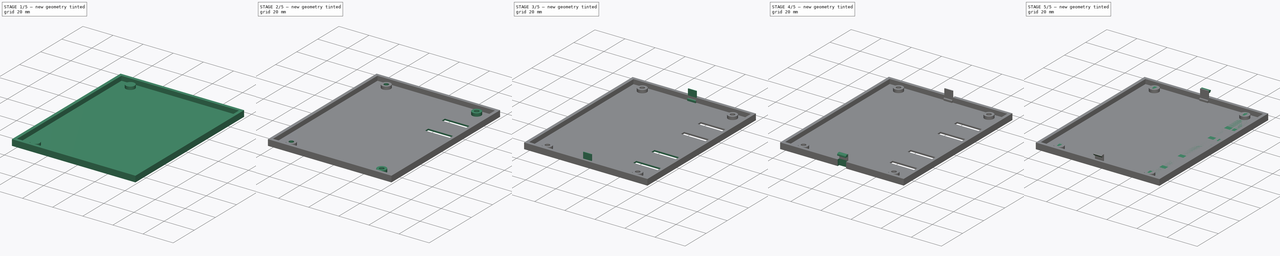
[diagram: build sequence overview — one tinted view per stage of 5, left to right]
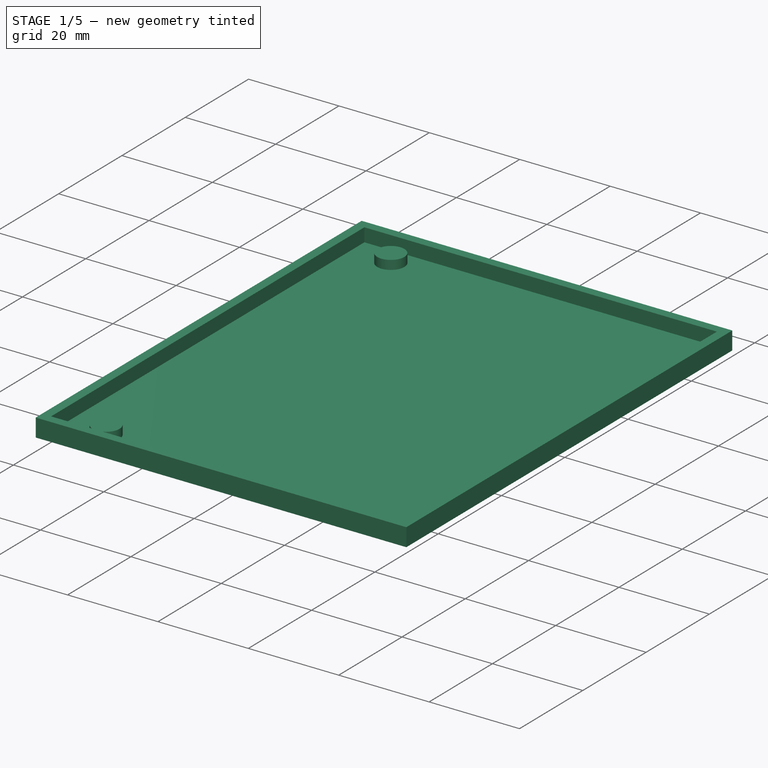
[diagram: stage 1 of 5 — iso view after this stage's code; geometry added in this stage tinted green]
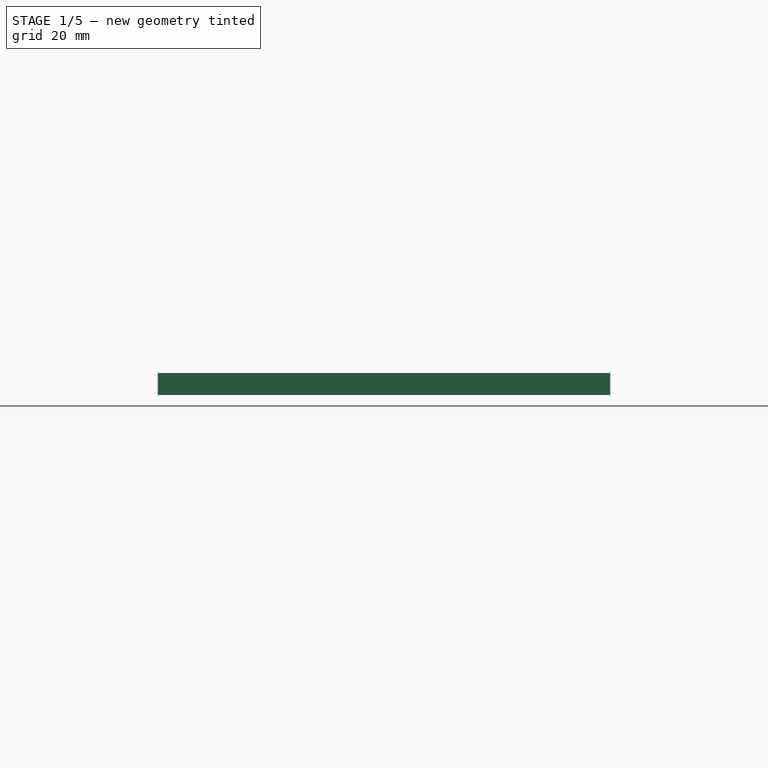
[diagram: stage 1 of 5 — front view after this stage's code; geometry added in this stage tinted green]
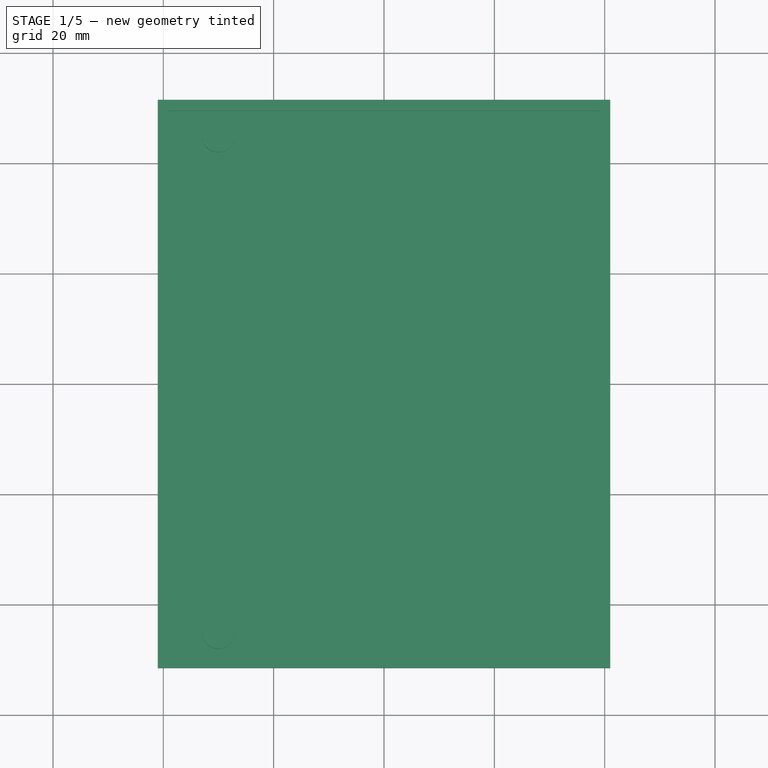
[diagram: stage 1 of 5 — top view after this stage's code; geometry added in this stage tinted green]
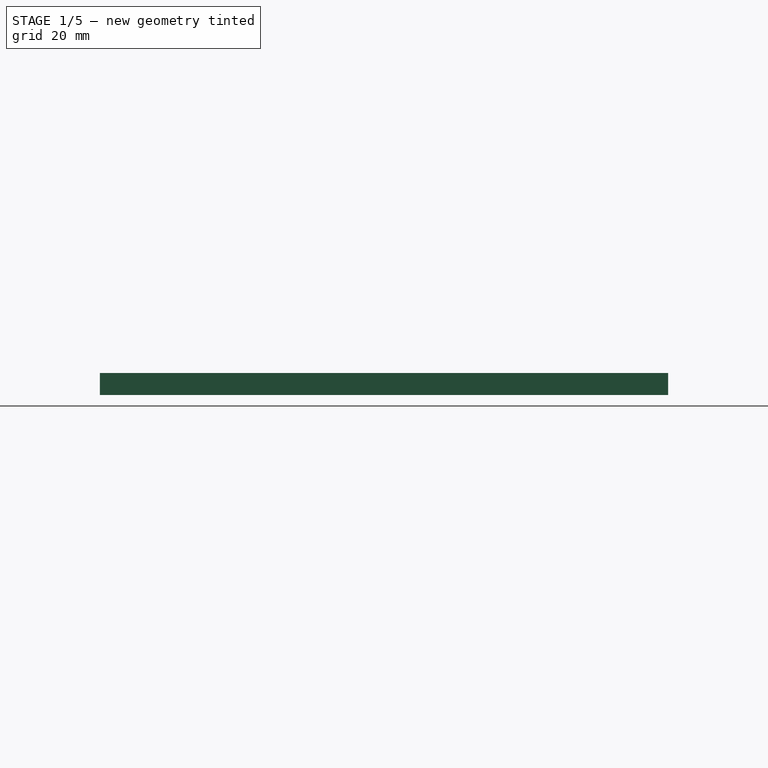
[diagram: stage 1 of 5 — right view after this stage's code; geometry added in this stage tinted green]
FCSTD DOCUMENT  (FreeCAD 1.0R39319 (Git))
Label: Tapa PLC
License: All rights reserved
LicenseURL: https://en.wikipedia.org/wiki/All_rights_reserved
objects: Sketcher::SketchObject×11, PartDesign::Pad×5, PartDesign::Pocket×5, PartDesign::Mirrored×3, PartDesign::Fillet×2, PartDesign::Chamfer×1, PartDesign::Body×1
note: 68 computed .brp shape members not serialized (recipe doc carries the construction recipe); baked Part::Feature solids carry a one-line shape summary decoded from their .brp

FEATURE [Sketcher::SketchObject] Sketch
  ArcFitTolerance = 1e-06
  AttachmentSupport = -> [XY_Plane]
  FullyConstrained = false
  MakeInternals = false
  MapMode = 5
  sketch-geometry (4):
    g0: LineSegment StartX=41 StartY=-51.5 StartZ=0 EndX=41 EndY=51.5 EndZ=0
    g1: LineSegment StartX=41 StartY=51.5 StartZ=0 EndX=-41 EndY=51.5 EndZ=0
    g2: LineSegment StartX=-41 StartY=51.5 StartZ=0 EndX=-41 EndY=-51.5 EndZ=0
    g3: LineSegment StartX=-41 StartY=-51.5 StartZ=0 EndX=41 EndY=-51.5 EndZ=0
  constraints (10):
    c: Coincident(g0,g1)
    c: Coincident(g1,g2)
    c: Coincident(g2,g3)
    c: Coincident(g3,g0)
    c: Vertical(g0)
    c: Vertical(g2)
    c: Horizontal(g1)
    c: Horizontal(g3)
    c: DistanceY(g2,g2) = 103
    c: DistanceX(g1,g1) = 82
FEATURE [PartDesign::Pad] Pad
  Direction = (0,0,1)
  Length = 4
  Length2 = 10
  Profile = -> Sketch
  ReferenceAxis = -> Sketch [N_Axis]
  Refine = true
  Suppressed = false
  Type = 0
FEATURE [Sketcher::SketchObject] Sketch001
  ArcFitTolerance = 1e-06
  AttachmentSupport = -> [Pad]
  FullyConstrained = true
  MakeInternals = false
  MapMode = 5
  Placement = pos=(0,0,4) rot=(0,0,1;0rad)
  sketch-geometry (5):
    g0: LineSegment StartX=39 StartY=-49.5 StartZ=0 EndX=39 EndY=49.5 EndZ=0
    g1: LineSegment StartX=39 StartY=49.5 StartZ=0 EndX=-39 EndY=49.5 EndZ=0
    g2: LineSegment StartX=-39 StartY=49.5 StartZ=0 EndX=-39 EndY=-49.5 EndZ=0
    g3: LineSegment StartX=-39 StartY=-49.5 StartZ=0 EndX=39 EndY=-49.5 EndZ=0
    g4: GeomPoint [constr] X=0 Y=0 Z=0
  constraints (12):
    c: Coincident(g0,g1)
    c: Coincident(g1,g2)
    c: Coincident(g2,g3)
    c: Coincident(g3,g0)
    c: Vertical(g0)
    c: Vertical(g2)
    c: Horizontal(g1)
    c: Horizontal(g3)
    c: Symmetric(g2,g0,g4)
    c: Coincident(g4,g-1)
    c: DistanceY(g2,g2) = 99
    c: DistanceX(g1,g1) = 78
FEATURE [PartDesign::Pocket] Pocket
  BaseFeature = -> Pad
  Direction = (0,0,-1)
  Length = 3
  Length2 = 5
  Profile = -> Sketch001
  ReferenceAxis = -> Sketch001 [N_Axis]
  Refine = true
  Suppressed = false
  Type = 0
FEATURE [Sketcher::SketchObject] Sketch002
  ArcFitTolerance = 1e-06
  AttachmentSupport = -> [Pocket]
  FullyConstrained = true
  MakeInternals = false
  MapMode = 5
  Placement = pos=(0,0,1) rot=(0,0,1;0rad)
  sketch-geometry (2):
    g0: Circle CenterX=-30 CenterY=45 CenterZ=0 NormalX=0 NormalY=0 NormalZ=1 AngleXU=0 Radius=3
    g1: Circle CenterX=-30 CenterY=-45 CenterZ=0 NormalX=0 NormalY=0 NormalZ=1 AngleXU=0 Radius=3
  constraints (6):
    c: DistanceY(g-1,g0) = 45
    c: DistanceX(g0,g-1) = 30
    c: DistanceX(g1,g-1) = 30
    c: DistanceY(g1,g-1) = 45
    c: Diameter(g1) = 6
    c: Diameter(g0) = 6
FEATURE [PartDesign::Pad] Pad001
  BaseFeature = -> Pocket
  Direction = (0,0,1)
  Length = 2
  Length2 = 10
  Profile = -> Sketch002
  ReferenceAxis = -> Sketch002 [N_Axis]
  Refine = true
  Suppressed = false
  Type = 0
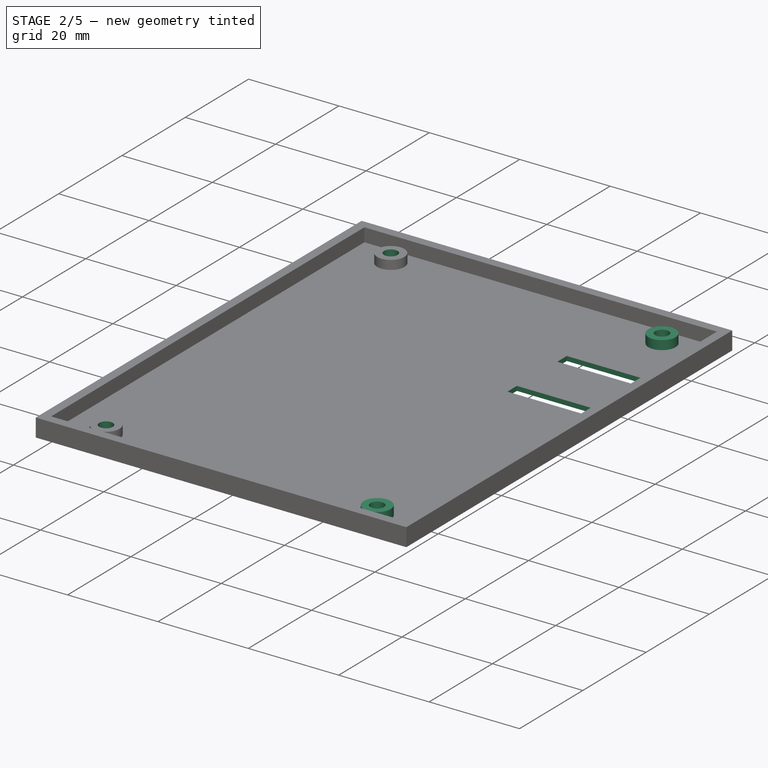
[diagram: stage 2 of 5 — iso view after this stage's code; geometry added in this stage tinted green]
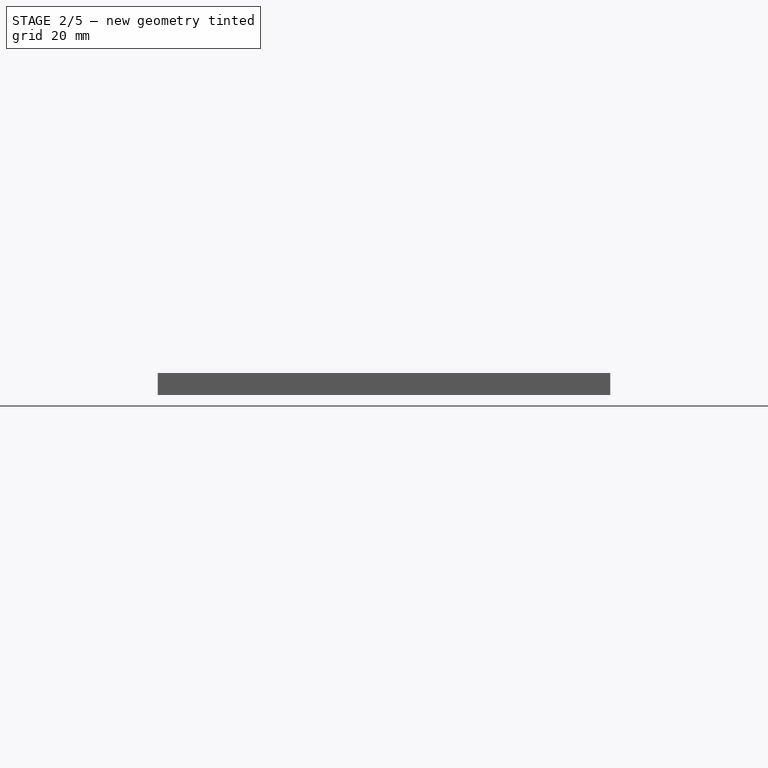
[diagram: stage 2 of 5 — front view after this stage's code; geometry added in this stage tinted green]
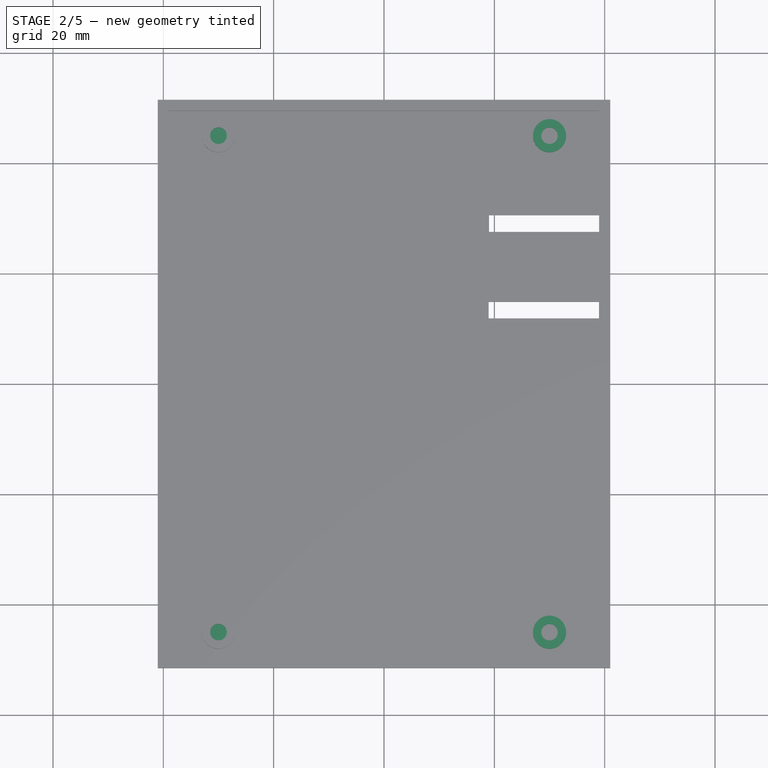
[diagram: stage 2 of 5 — top view after this stage's code; geometry added in this stage tinted green]
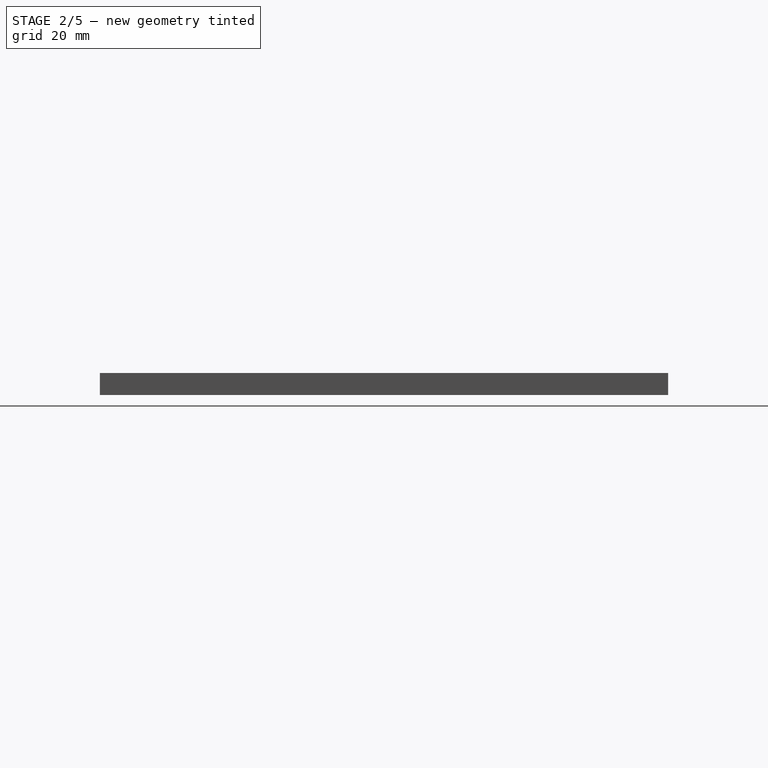
[diagram: stage 2 of 5 — right view after this stage's code; geometry added in this stage tinted green]
FEATURE [Sketcher::SketchObject] Sketch003
  ArcFitTolerance = 1e-06
  AttachmentSupport = -> [Mirrored]
  FullyConstrained = true
  MakeInternals = false
  MapMode = 5
  Placement = pos=(0,0,3) rot=(0,0,1;0rad)
  sketch-geometry (4):
    g0: Circle CenterX=-30 CenterY=45 CenterZ=0 NormalX=0 NormalY=0 NormalZ=1 AngleXU=0 Radius=1.5
    g1: Circle CenterX=-30 CenterY=-45 CenterZ=0 NormalX=0 NormalY=0 NormalZ=1 AngleXU=0 Radius=1.5
    g2: Circle CenterX=30 CenterY=-45 CenterZ=0 NormalX=0 NormalY=0 NormalZ=1 AngleXU=0 Radius=1.5
    g3: Circle CenterX=30 CenterY=45 CenterZ=0 NormalX=0 NormalY=0 NormalZ=1 AngleXU=0 Radius=1.5
  constraints (12):
    c: DistanceX(g0,g-1) = 30
    c: DistanceY(g-1,g0) = 45
    c: DistanceX(g-1,g3) = 30
    c: DistanceY(g-1,g3) = 45
    c: DistanceX(g1,g-1) = 30
    c: DistanceY(g1,g-1) = 45
    c: DistanceX(g-1,g2) = 30
    c: DistanceY(g2,g-1) = 45
    c: Diameter(g2) = 3
    c: Diameter(g1) = 3
    c: Diameter(g0) = 3
    c: Diameter(g3) = 3
FEATURE [PartDesign::Pocket] Pocket001
  BaseFeature = -> Pad001
  Direction = (0,0,-1)
  Length = 2
  Length2 = 5
  Profile = -> Sketch003
  ReferenceAxis = -> Sketch003 [N_Axis]
  Refine = true
  Suppressed = false
  Type = 0
FEATURE [PartDesign::Mirrored] Mirrored001
  BaseFeature = -> Pocket001
  MirrorPlane = -> YZ_Plane
  Refine = true
  Suppressed = false
  TransformMode = 1
FEATURE [Sketcher::SketchObject] Sketch004
  ArcFitTolerance = 1e-06
  AttachmentSupport = -> [Mirrored001]
  FullyConstrained = false
  MakeInternals = false
  MapMode = 5
  Placement = pos=(0,0,1) rot=(0,0,1;0rad)
  sketch-geometry (8):
    g0: LineSegment StartX=39.0318 StartY=30.5954 StartZ=0 EndX=19.0318 EndY=30.5954 EndZ=0
    g1: LineSegment StartX=19.0318 StartY=30.5954 StartZ=0 EndX=19.0318 EndY=27.5954 EndZ=0
    g2: LineSegment StartX=19.0318 StartY=27.5954 StartZ=0 EndX=39.0318 EndY=27.5954 EndZ=0
    g3: LineSegment StartX=39.0318 StartY=27.5954 StartZ=0 EndX=39.0318 EndY=30.5954 EndZ=0
    g4: LineSegment StartX=38.9677 StartY=11.9056 StartZ=0 EndX=38.9677 EndY=14.9056 EndZ=0
    g5: LineSegment StartX=38.9677 StartY=14.9056 StartZ=0 EndX=18.9677 EndY=14.9056 EndZ=0
    g6: LineSegment StartX=18.9677 StartY=14.9056 StartZ=0 EndX=18.9677 EndY=11.9056 EndZ=0
    g7: LineSegment StartX=18.9677 StartY=11.9056 StartZ=0 EndX=38.9677 EndY=11.9056 EndZ=0
  constraints (20):
    c: Coincident(g0,g1)
    c: Coincident(g1,g2)
    c: Coincident(g2,g3)
    c: Coincident(g3,g0)
    c: Horizontal(g0)
    c: Horizontal(g2)
    c: Vertical(g1)
    c: Vertical(g3)
    c: Coincident(g4,g5)
    c: Coincident(g5,g6)
    c: Coincident(g6,g7)
    c: Coincident(g7,g4)
    c: Vertical(g4)
    c: Vertical(g6)
    c: Horizontal(g5)
    c: Horizontal(g7)
    c: DistanceY(g6,g6) = 3
    c: DistanceX(g5,g5) = 20
    c: DistanceX(g0,g0) = 20
    c: DistanceY(g1,g1) = 3
FEATURE [PartDesign::Pocket] Pocket002
  BaseFeature = -> Mirrored001
  Direction = (0,0,-1)
  Length = 5
  Length2 = 5
  Midplane = true
  Profile = -> Sketch004
  ReferenceAxis = -> Sketch004 [N_Axis]
  Refine = true
  Suppressed = false
  Type = 0
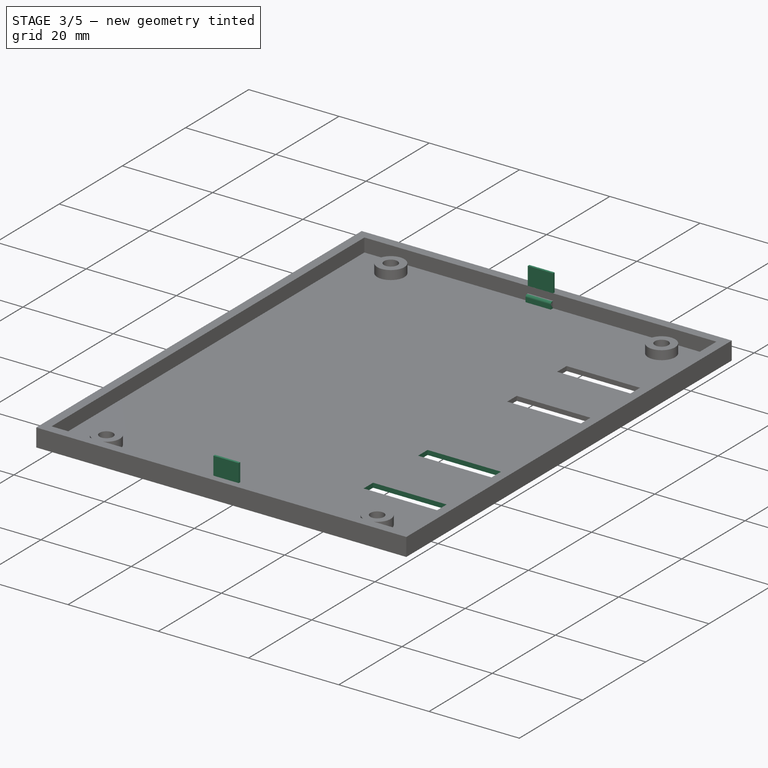
[diagram: stage 3 of 5 — iso view after this stage's code; geometry added in this stage tinted green]
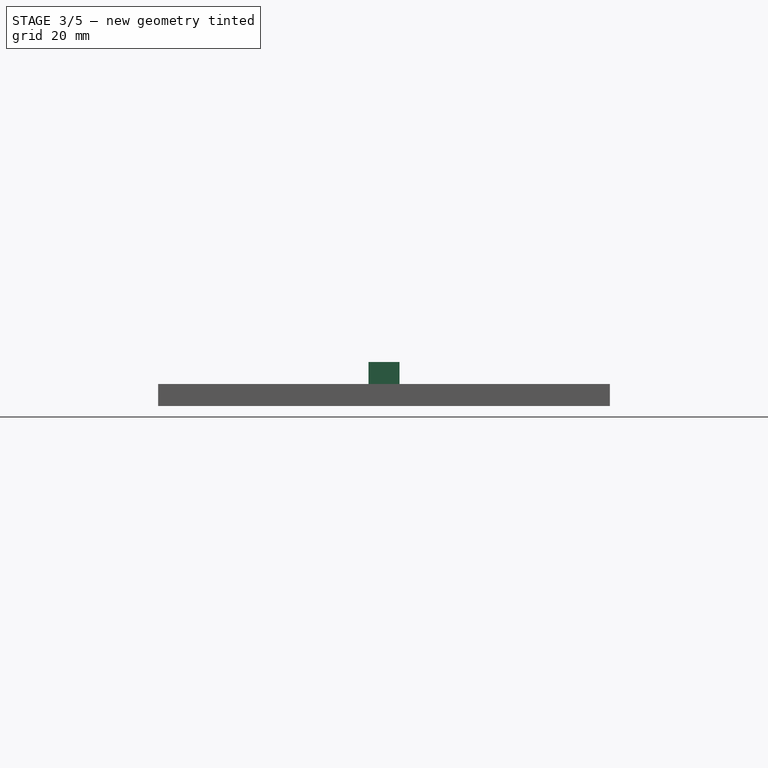
[diagram: stage 3 of 5 — front view after this stage's code; geometry added in this stage tinted green]
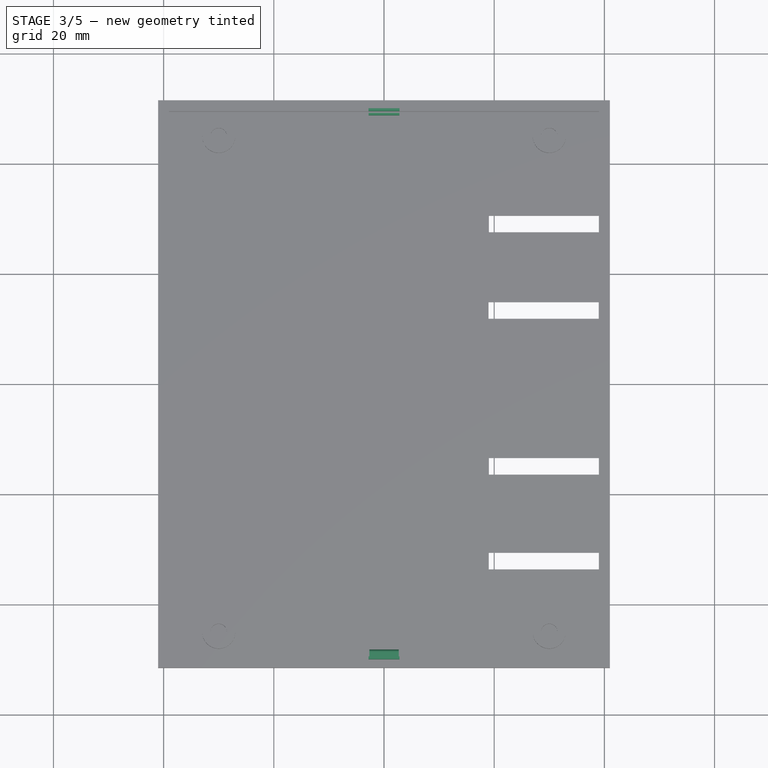
[diagram: stage 3 of 5 — top view after this stage's code; geometry added in this stage tinted green]
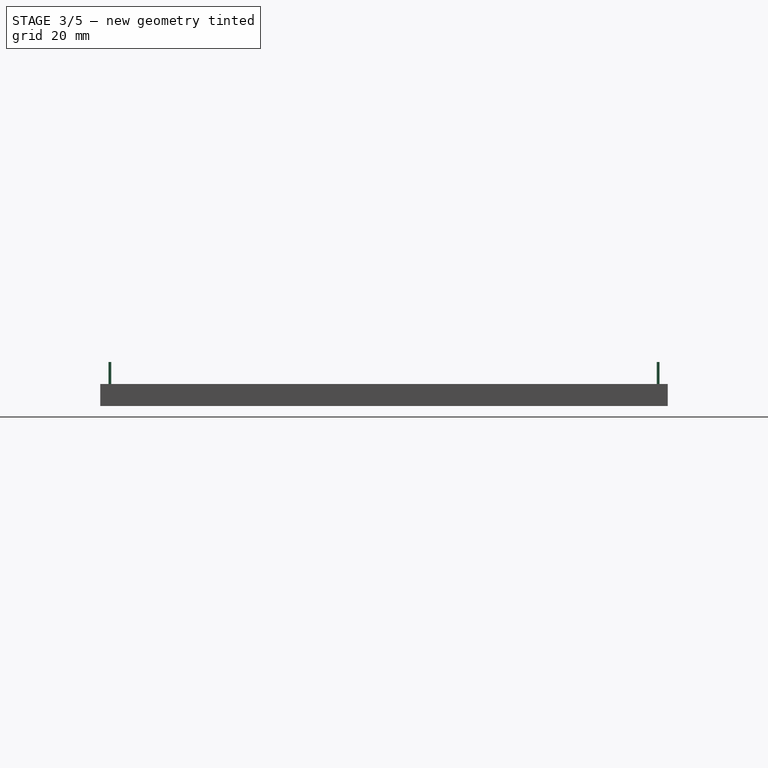
[diagram: stage 3 of 5 — right view after this stage's code; geometry added in this stage tinted green]
FEATURE [Sketcher::SketchObject] Sketch005
  ArcFitTolerance = 1e-06
  AttachmentSupport = -> [Pocket002]
  FullyConstrained = false
  MakeInternals = false
  MapMode = 5
  Placement = pos=(0,0,1) rot=(0,0,1;0rad)
  sketch-geometry (8):
    g0: LineSegment StartX=39.0281 StartY=-13.3958 StartZ=0 EndX=19.0281 EndY=-13.3958 EndZ=0
    g1: LineSegment StartX=19.0281 StartY=-13.3958 StartZ=0 EndX=19.0281 EndY=-16.3958 EndZ=0
    g2: LineSegment StartX=19.0281 StartY=-16.3958 StartZ=0 EndX=39.0281 EndY=-16.3958 EndZ=0
    g3: LineSegment StartX=39.0281 StartY=-16.3958 StartZ=0 EndX=39.0281 EndY=-13.3958 EndZ=0
    g4: LineSegment StartX=39.0021 StartY=-33.5946 StartZ=0 EndX=39.0021 EndY=-30.5946 EndZ=0
    g5: LineSegment StartX=39.0021 StartY=-30.5946 StartZ=0 EndX=19.0021 EndY=-30.5946 EndZ=0
    g6: LineSegment StartX=19.0021 StartY=-30.5946 StartZ=0 EndX=19.0021 EndY=-33.5946 EndZ=0
    g7: LineSegment StartX=19.0021 StartY=-33.5946 StartZ=0 EndX=39.0021 EndY=-33.5946 EndZ=0
  constraints (20):
    c: Coincident(g0,g1)
    c: Coincident(g1,g2)
    c: Coincident(g2,g3)
    c: Coincident(g3,g0)
    c: Horizontal(g0)
    c: Horizontal(g2)
    c: Vertical(g1)
    c: Vertical(g3)
    c: Coincident(g4,g5)
    c: Coincident(g5,g6)
    c: Coincident(g6,g7)
    c: Coincident(g7,g4)
    c: Vertical(g4)
    c: Vertical(g6)
    c: Horizontal(g5)
    c: Horizontal(g7)
    c: DistanceY(g1,g1) = 3
    c: DistanceY(g6,g6) = 3
    c: DistanceX(g0,g0) = 20
    c: DistanceX(g5,g5) = 20
FEATURE [PartDesign::Pocket] Pocket003
  BaseFeature = -> Pocket002
  Direction = (0,0,-1)
  Length = 5
  Length2 = 5
  Profile = -> Sketch005
  ReferenceAxis = -> Sketch005 [N_Axis]
  Refine = true
  Suppressed = false
  Type = 0
FEATURE [Sketcher::SketchObject] Sketch006
  ArcFitTolerance = 1e-06
  AttachmentSupport = -> [Pocket003]
  FullyConstrained = false
  MakeInternals = false
  MapMode = 5
  Placement = pos=(0,0,4) rot=(0,0,1;0rad)
  sketch-geometry (10):
    g0: LineSegment StartX=-2.80232 StartY=-49.5083 StartZ=0 EndX=-2.80232 EndY=-49.9956 EndZ=0
    g1: LineSegment StartX=-2.80232 StartY=-49.9956 StartZ=0 EndX=2.80232 EndY=-49.9956 EndZ=0
    g2: LineSegment StartX=2.80232 StartY=-49.9956 StartZ=0 EndX=2.80232 EndY=-49.5083 EndZ=0
    g3: LineSegment StartX=2.80232 StartY=-49.5083 StartZ=0 EndX=-2.80232 EndY=-49.5083 EndZ=0
    g4: LineSegment [constr] StartX=0 StartY=-47.1264 StartZ=0 EndX=0 EndY=-51.6196 EndZ=0
    g5: LineSegment StartX=-2.80232 StartY=49.5083 StartZ=0 EndX=-2.80232 EndY=49.9956 EndZ=0
    g6: LineSegment StartX=-2.80232 StartY=49.9956 StartZ=0 EndX=2.80232 EndY=49.9956 EndZ=0
    g7: LineSegment StartX=2.80232 StartY=49.9956 StartZ=0 EndX=2.80232 EndY=49.5083 EndZ=0
    g8: LineSegment StartX=2.80232 StartY=49.5083 StartZ=0 EndX=-2.80232 EndY=49.5083 EndZ=0
    g9: LineSegment [constr] StartX=0 StartY=47.1264 StartZ=0 EndX=0 EndY=51.6196 EndZ=0
  constraints (11):
    c: Coincident(g1,g2)
    c: Coincident(g2,g3)
    c: Coincident(g3,g0)
    c: Vertical(g0)
    c: Vertical(g2)
    c: Horizontal(g1)
    c: Horizontal(g3)
    c: PointOnObject(g4,g-2)
    c: PointOnObject(g4,g-2)
    c: Symmetric(g0,g1,g4)
    c: Symmetric(g5,g6,g9)
FEATURE [PartDesign::Pad] Pad002
  BaseFeature = -> Pocket003
  Direction = (0,0,1)
  Length = 4
  Length2 = 10
  Profile = -> Sketch006
  ReferenceAxis = -> Sketch006 [N_Axis]
  Refine = true
  Suppressed = false
  Type = 0
FEATURE [Sketcher::SketchObject] Sketch007
  ArcFitTolerance = 1e-06
  AttachmentSupport = -> [Pad002]
  FullyConstrained = true
  MakeInternals = false
  MapMode = 5
  Placement = pos=(0,0,4) rot=(0,0,1;0rad)
FEATURE [Sketcher::SketchObject] Sketch008
  ArcFitTolerance = 1e-06
  AttachmentSupport = -> [Pad002]
  FullyConstrained = false
  MakeInternals = false
  MapMode = 5
  Placement = pos=(0,0,1) rot=(0,0,1;0rad)
  sketch-geometry (8):
    g0: LineSegment StartX=-2.65937 StartY=-49.5019 StartZ=0 EndX=2.67348 EndY=-49.5019 EndZ=0
    g1: LineSegment StartX=2.67348 StartY=-49.5019 StartZ=0 EndX=2.67348 EndY=-48.162 EndZ=0
    g2: LineSegment StartX=2.67348 StartY=-48.162 StartZ=0 EndX=-2.65937 EndY=-48.162 EndZ=0
    g3: LineSegment StartX=-2.65937 StartY=-48.162 StartZ=0 EndX=-2.65937 EndY=-49.5019 EndZ=0
    g4: LineSegment StartX=-2.79735 StartY=49.5069 StartZ=0 EndX=2.78507 EndY=49.5069 EndZ=0
    g5: LineSegment StartX=2.78507 StartY=49.5069 StartZ=0 EndX=2.78507 EndY=48.7897 EndZ=0
    g6: LineSegment StartX=2.78507 StartY=48.7897 StartZ=0 EndX=-2.79735 EndY=48.7897 EndZ=0
    g7: LineSegment StartX=-2.79735 StartY=48.7897 StartZ=0 EndX=-2.79735 EndY=49.5069 EndZ=0
  constraints (16):
    c: Coincident(g2,g3)
    c: Coincident(g3,g0)
    c: Horizontal(g0)
    c: Horizontal(g2)
    c: Vertical(g1)
    c: Vertical(g3)
    c: Coincident(g6,g7)
    c: Coincident(g7,g4)
    c: Horizontal(g4)
    c: Horizontal(g6)
    c: Vertical(g5)
    c: Vertical(g7)
    c: Coincident(g2,g1)
    c: Coincident(g0,g1)
    c: Coincident(g4,g5)
    c: Coincident(g5,g6)
FEATURE [PartDesign::Pad] Pad003
  BaseFeature = -> Pad002
  Direction = (0,0,1)
  Length = 1.5
  Length2 = 10
  Profile = -> Sketch008
  ReferenceAxis = -> Sketch008 [N_Axis]
  Refine = true
  Suppressed = false
  Type = 0
FEATURE [PartDesign::Fillet] Fillet
  Base = -> Pad003 [Edge137,Edge132]
  BaseFeature = -> Pad003
  Radius = 0.5
  Refine = true
  SupportTransform = false
  Suppressed = false
  UseAllEdges = false
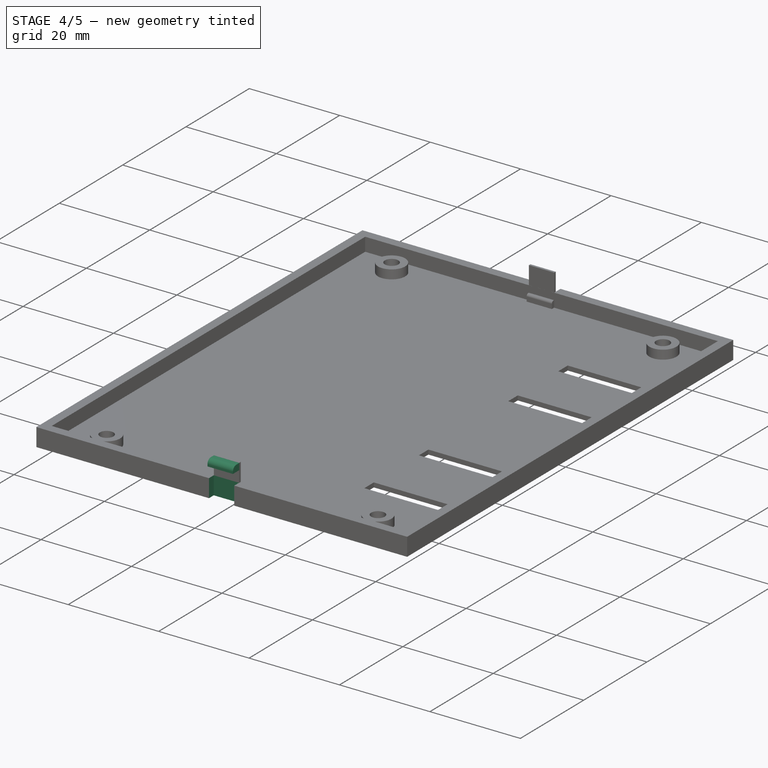
[diagram: stage 4 of 5 — iso view after this stage's code; geometry added in this stage tinted green]
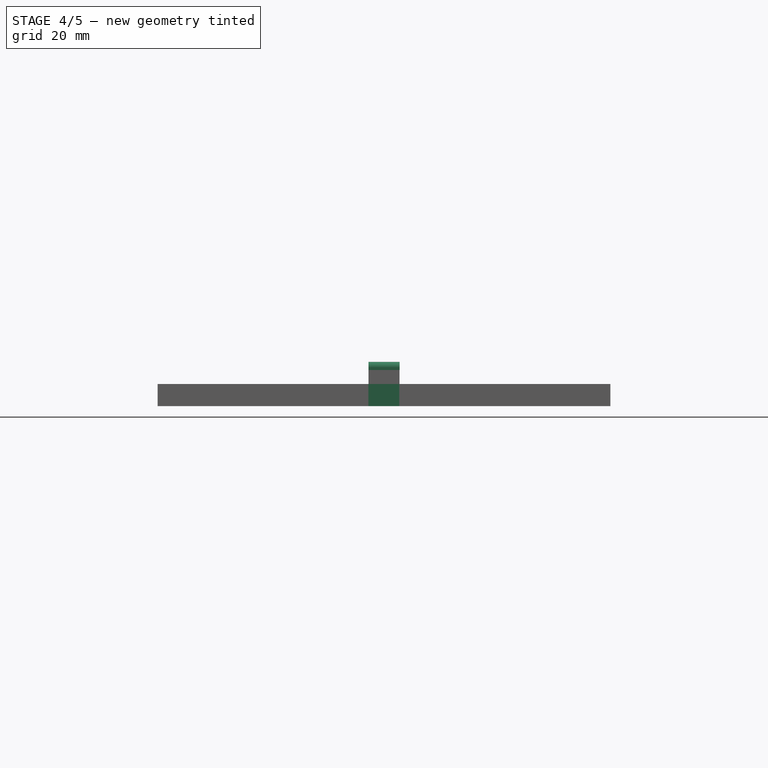
[diagram: stage 4 of 5 — front view after this stage's code; geometry added in this stage tinted green]
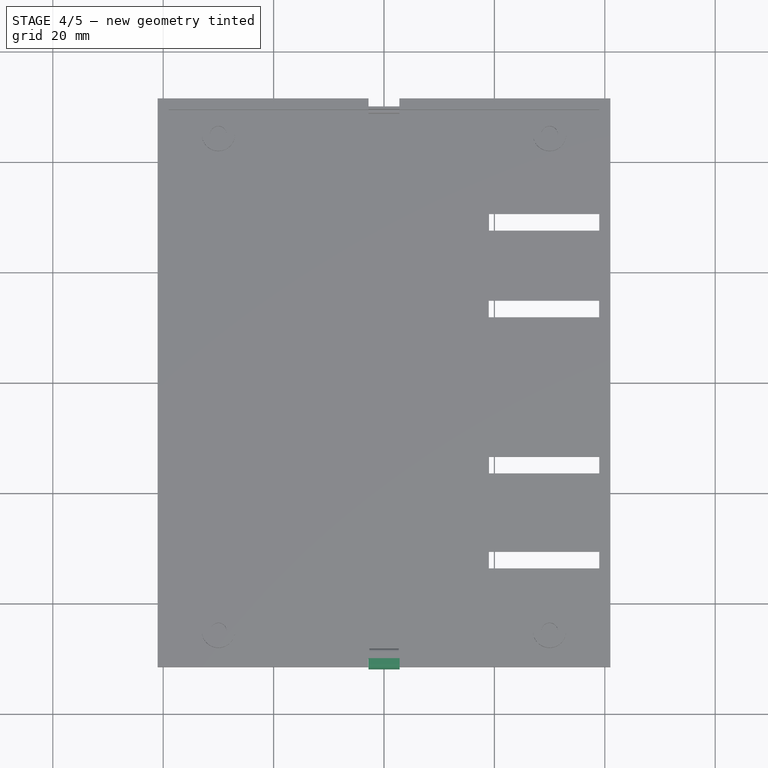
[diagram: stage 4 of 5 — top view after this stage's code; geometry added in this stage tinted green]
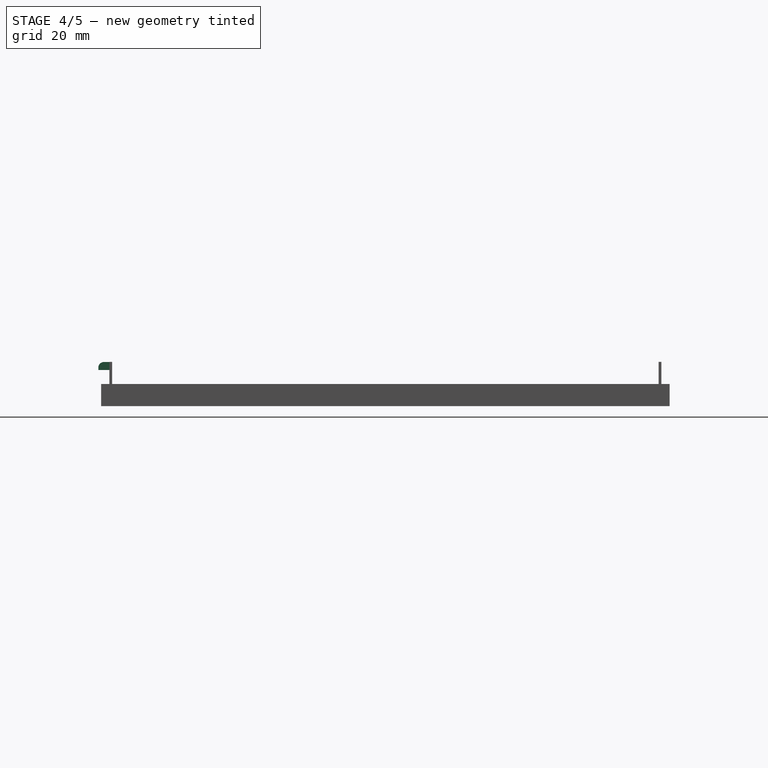
[diagram: stage 4 of 5 — right view after this stage's code; geometry added in this stage tinted green]
FEATURE [Sketcher::SketchObject] Sketch009
  ArcFitTolerance = 1e-06
  AttachmentSupport = -> [Fillet]
  FullyConstrained = false
  MakeInternals = false
  MapMode = 5
  Placement = pos=(0,0,4) rot=(0,0,1;0rad)
  sketch-geometry (8):
    g0: LineSegment StartX=-2.82173 StartY=-49.9953 StartZ=0 EndX=-2.82173 EndY=-51.6935 EndZ=0
    g1: LineSegment StartX=-2.82173 StartY=-51.6935 StartZ=0 EndX=2.77199 EndY=-51.6935 EndZ=0
    g2: LineSegment StartX=2.77199 StartY=-51.6935 StartZ=0 EndX=2.77199 EndY=-49.9953 EndZ=0
    g3: LineSegment StartX=2.77199 StartY=-49.9953 StartZ=0 EndX=-2.82173 EndY=-49.9953 EndZ=0
    g4: LineSegment StartX=-2.79966 StartY=49.9953 StartZ=0 EndX=-2.79966 EndY=51.6576 EndZ=0
    g5: LineSegment StartX=-2.79966 StartY=51.6576 StartZ=0 EndX=2.79406 EndY=51.6576 EndZ=0
    g6: LineSegment StartX=2.79406 StartY=51.6576 StartZ=0 EndX=2.79406 EndY=49.9953 EndZ=0
    g7: LineSegment StartX=2.79406 StartY=49.9953 StartZ=0 EndX=-2.79966 EndY=49.9953 EndZ=0
  constraints (16):
    c: Coincident(g0,g1)
    c: Coincident(g1,g2)
    c: Coincident(g2,g3)
    c: Coincident(g3,g0)
    c: Vertical(g0)
    c: Vertical(g2)
    c: Horizontal(g1)
    c: Horizontal(g3)
    c: Coincident(g4,g5)
    c: Coincident(g5,g6)
    c: Coincident(g6,g7)
    c: Coincident(g7,g4)
    c: Vertical(g4)
    c: Vertical(g6)
    c: Horizontal(g5)
    c: Horizontal(g7)
FEATURE [PartDesign::Pocket] Pocket004
  BaseFeature = -> Fillet
  Direction = (0,0,-1)
  Length = 5
  Length2 = 5
  Profile = -> Sketch009
  ReferenceAxis = -> Sketch009 [N_Axis]
  Refine = true
  Suppressed = false
  Type = 1
FEATURE [Sketcher::SketchObject] Sketch010
  ArcFitTolerance = 1e-06
  AttachmentSupport = -> [Pocket004]
  FullyConstrained = false
  MakeInternals = false
  MapMode = 5
  Placement = pos=(0,-49.9956,0) rot=(1,0,0;1.5708rad)
  sketch-geometry (4):
    g0: LineSegment StartX=-2.81378 StartY=7.98362 StartZ=0 EndX=-2.81378 EndY=6.53976 EndZ=0
    g1: LineSegment StartX=-2.81378 StartY=6.53976 StartZ=0 EndX=2.82224 EndY=6.53976 EndZ=0
    g2: LineSegment StartX=2.82224 StartY=6.53976 StartZ=0 EndX=2.82224 EndY=7.98362 EndZ=0
    g3: LineSegment StartX=2.82224 StartY=7.98362 StartZ=0 EndX=-2.81378 EndY=7.98362 EndZ=0
  constraints (8):
    c: Coincident(g0,g1)
    c: Coincident(g1,g2)
    c: Coincident(g2,g3)
    c: Coincident(g3,g0)
    c: Vertical(g0)
    c: Vertical(g2)
    c: Horizontal(g1)
    c: Horizontal(g3)
FEATURE [PartDesign::Pad] Pad004
  BaseFeature = -> Pocket004
  Direction = (0,-1,2e-16)
  Length = 2
  Length2 = 10
  Profile = -> Sketch010
  ReferenceAxis = -> Sketch010 [N_Axis]
  Refine = true
  Suppressed = false
  Type = 0
FEATURE [PartDesign::Fillet] Fillet001
  Base = -> Pad004 [Edge210]
  BaseFeature = -> Pad004
  Radius = 1
  Refine = true
  SupportTransform = false
  Suppressed = false
  UseAllEdges = false
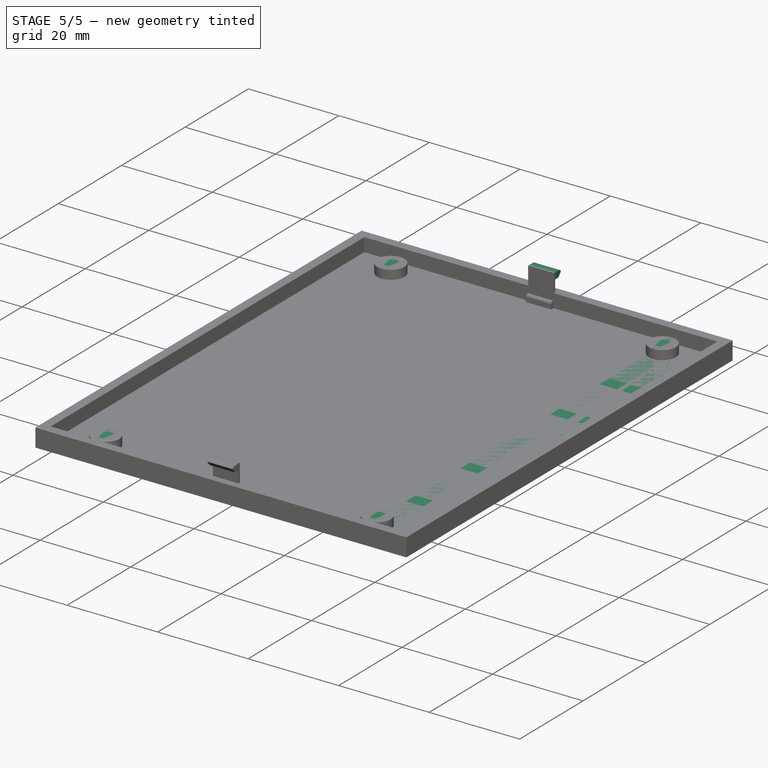
[diagram: stage 5 of 5 — iso view after this stage's code; geometry added in this stage tinted green]
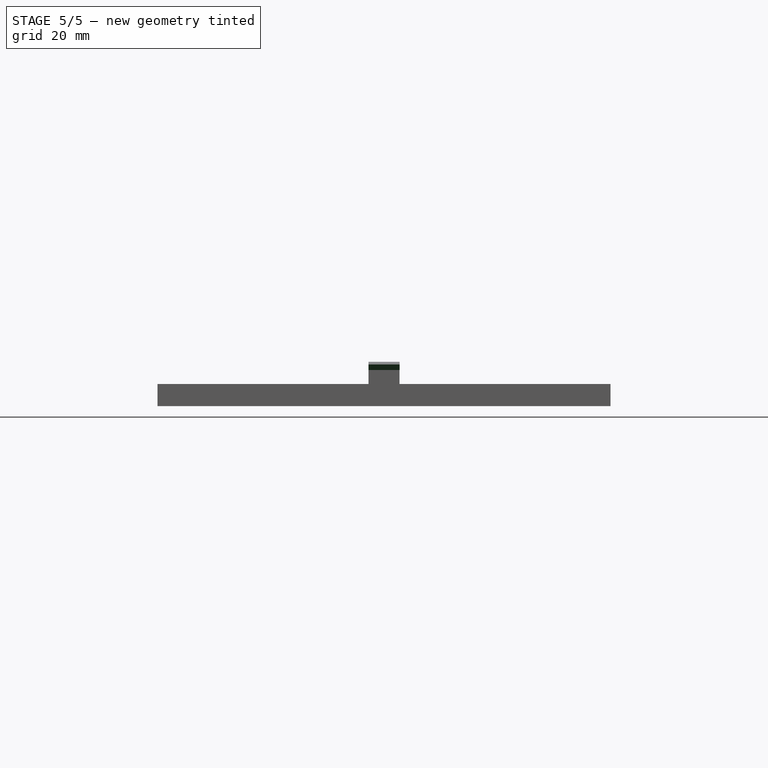
[diagram: stage 5 of 5 — front view after this stage's code; geometry added in this stage tinted green]
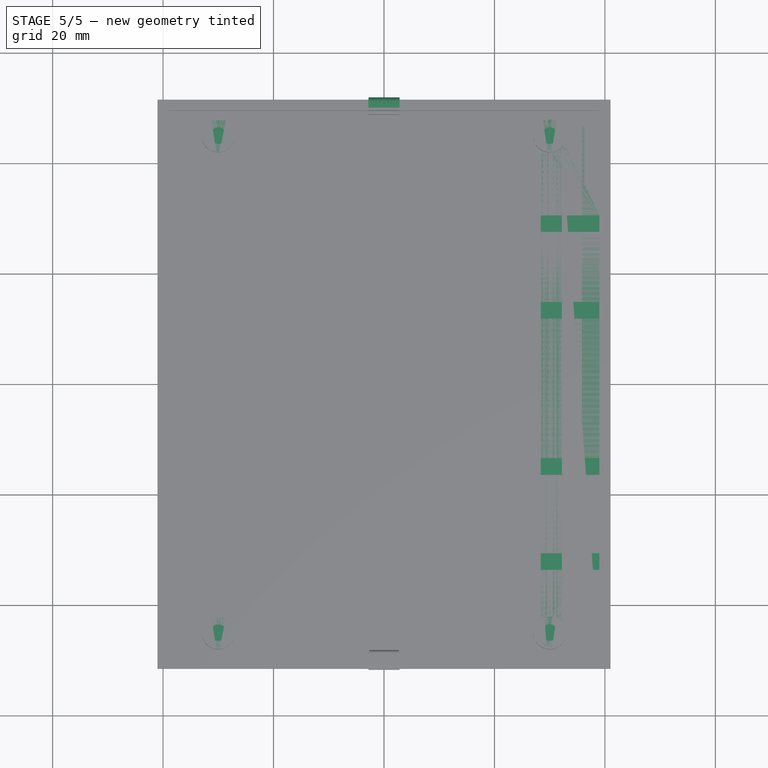
[diagram: stage 5 of 5 — top view after this stage's code; geometry added in this stage tinted green]
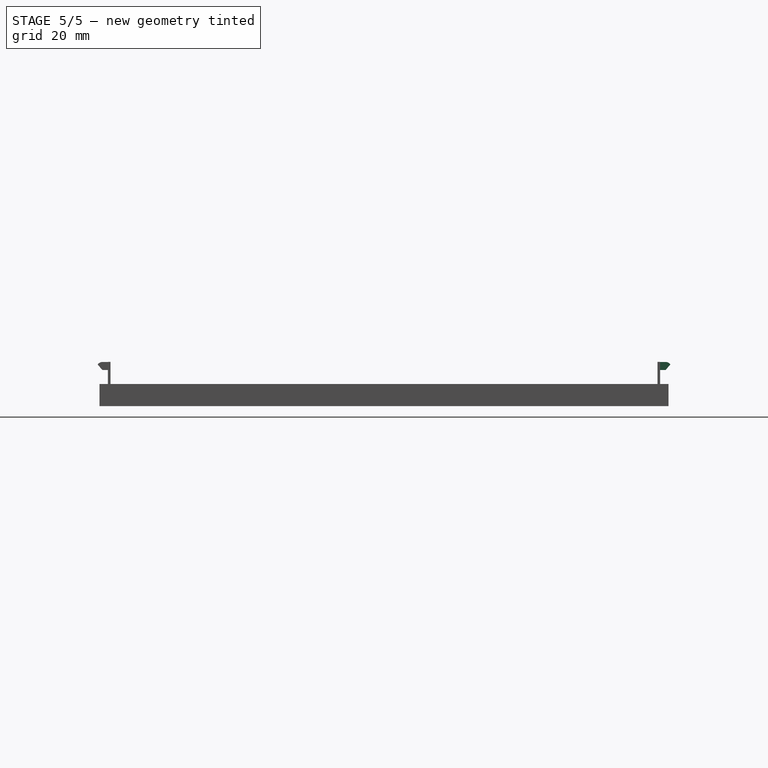
[diagram: stage 5 of 5 — right view after this stage's code; geometry added in this stage tinted green]
FEATURE [PartDesign::Mirrored] Mirrored
  BaseFeature = -> Pad001
  MirrorPlane = -> YZ_Plane
  Refine = true
  Suppressed = false
  TransformMode = 0
FEATURE [PartDesign::Chamfer] Chamfer
  Angle = 45
  Base = -> Fillet001 [Edge15]
  BaseFeature = -> Fillet001
  ChamferType = 0
  FlipDirection = false
  Refine = true
  Size = 1
  Size2 = 1
  SupportTransform = false
  Suppressed = false
  UseAllEdges = false
FEATURE [PartDesign::Mirrored] Mirrored002
  BaseFeature = -> Chamfer
  MirrorPlane = -> XZ_Plane
  Originals = -> [Pad004,Fillet001,Chamfer]
  Refine = true
  Suppressed = false
  TransformMode = 0
FEATURE [PartDesign::Body] Body  label="Cuerpo"
  AllowCompound = false
  Group = -> [Sketch,Pad,Sketch001,Pocket,Sketch002,Pad001,Mirrored,Sketch003,Pocket001,Mirrored001,Sketch004,Pocket002,Sketch005,Pocket003,Sketch006,Pad002,Sketch007,Sketch008,Pad003,Fillet,Sketch009,Pocket004,Sketch010,Pad004,Fillet001,Chamfer,Mirrored002]
  Origin = -> Origin
  Tip = -> Mirrored002
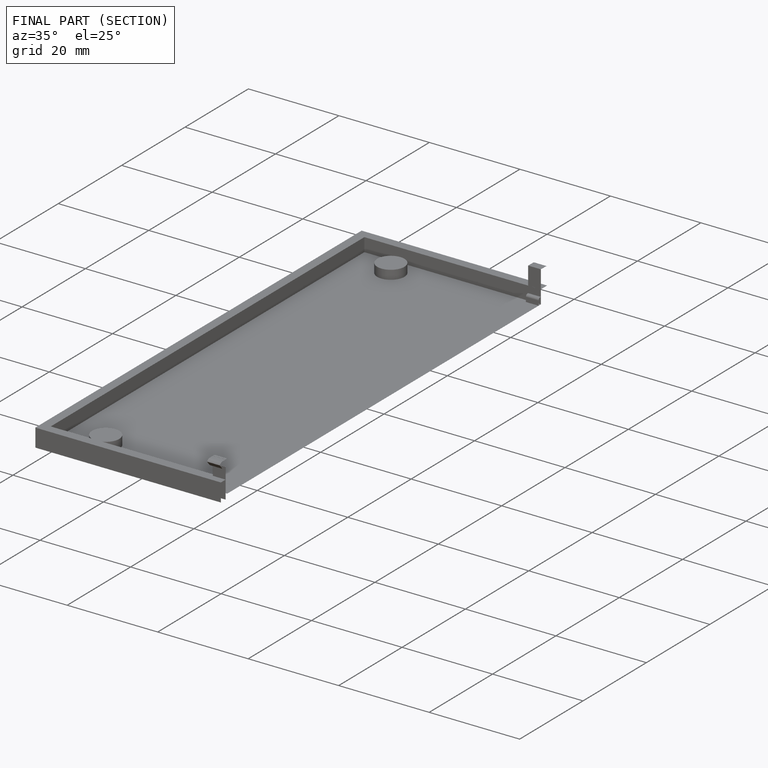
[diagram: finished part — half-section view (interior)]
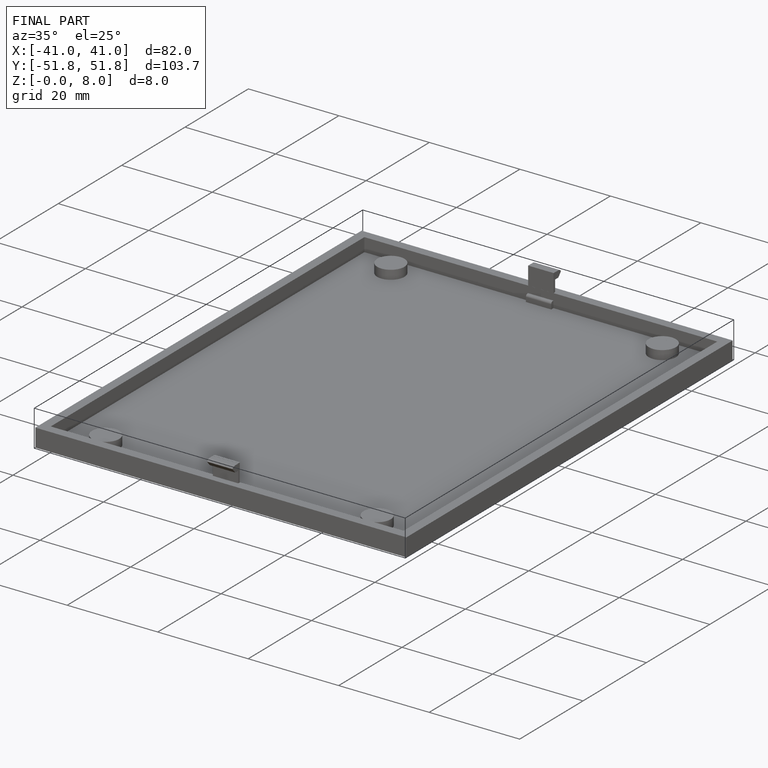
[diagram: finished part — iso view with bounding-box wireframe]
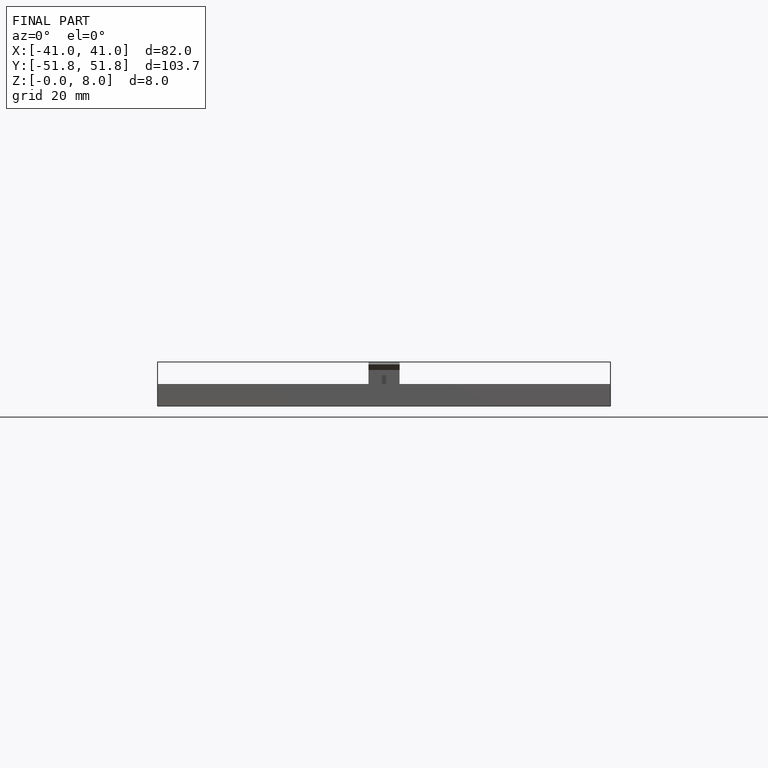
[diagram: finished part — front view with bounding-box wireframe]
